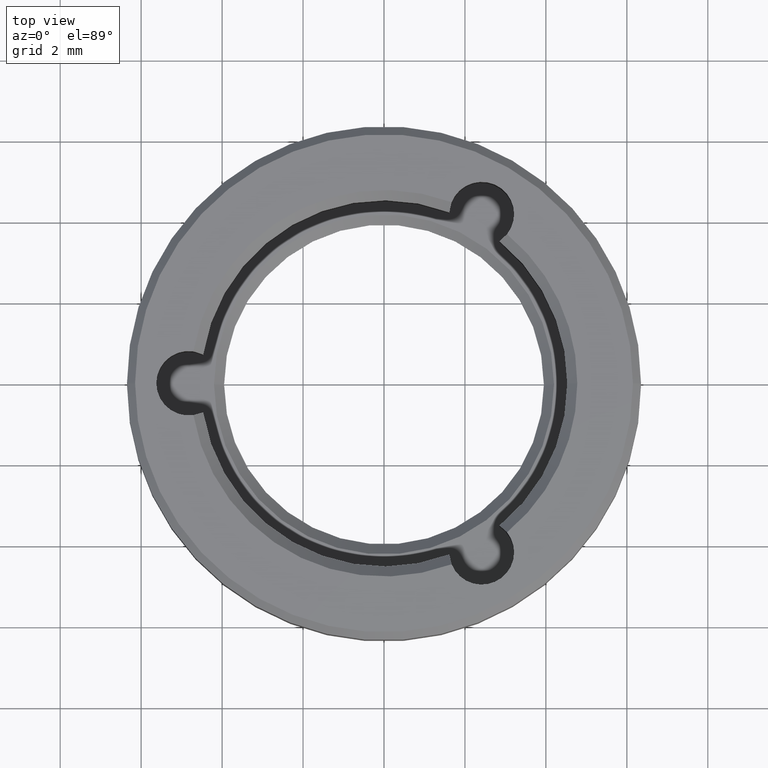
[diagram: clean part render]
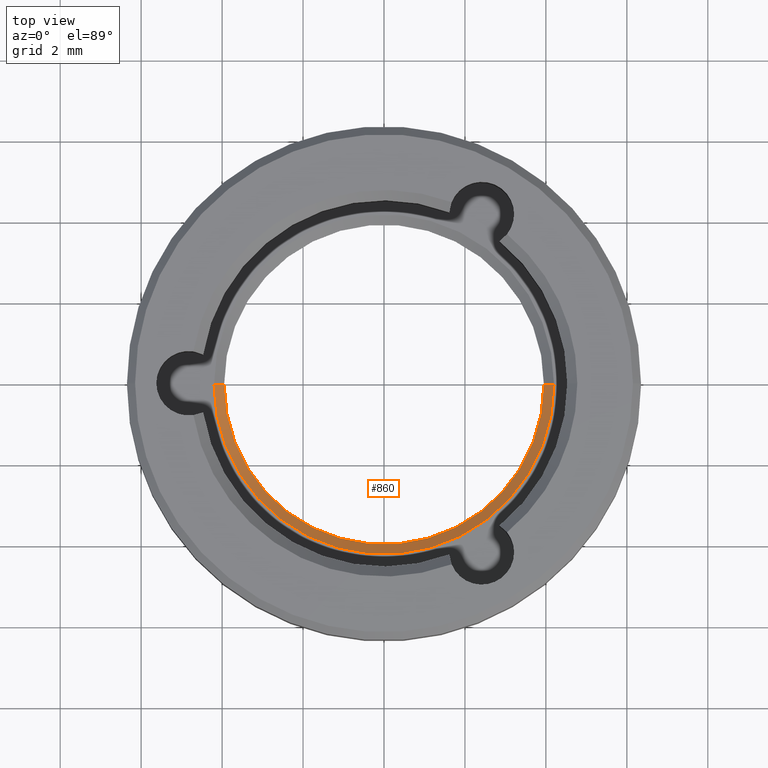
[diagram: same view with one face highlighted and labeled with its STEP entity id]
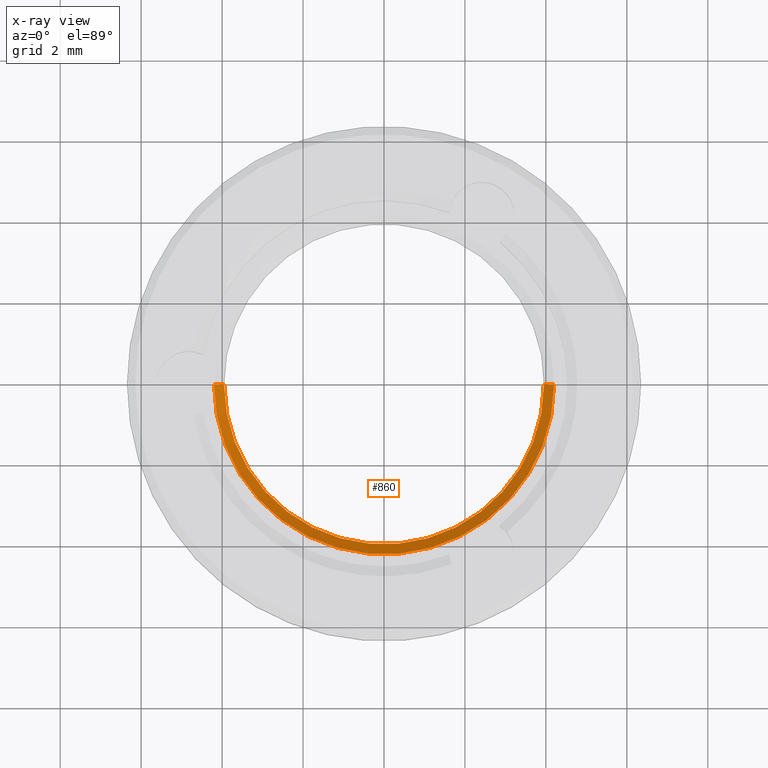
[diagram: x-ray of the same camera — body ghosted, the highlighted face saturated]
A machine part, top view. The second image highlights one B-rep face of the part: STEP entity #860.
The next image is the same camera in x-ray: the body ghosted, the highlighted face saturated — about 0% of this face is hidden behind the body in this view.
In plain terms, the highlighted conical surface has half-angle 45 deg.
Its self-contained STEP definition (entity closure, byte-faithful):
#17 = CARTESIAN_POINT ( 'NONE',  ( 4.199999999999995737, 0.000000000000000000, 0.6000000000000000888 ) ) ;
#21 = EDGE_CURVE ( 'NONE', #678, #889, #741, .T. ) ;
#33 = VERTEX_POINT ( 'NONE', #101 ) ;
#40 = DIRECTION ( 'NONE',  ( 0.000000000000000000, 0.000000000000000000, 1.000000000000000000 ) ) ;
#53 = LINE ( 'NONE', #558, #477 ) ;
#101 = CARTESIAN_POINT ( 'NONE',  ( -3.950000000000000178, 4.837354856632045057E-16, 0.3500000000000067502 ) ) ;
#116 = EDGE_CURVE ( 'NONE', #33, #889, #53, .T. ) ;
#118 = ORIENTED_EDGE ( 'NONE', *, *, #751, .F. ) ;
#153 = CONICAL_SURFACE ( 'NONE', #811, 3.950000000000000178, 0.7853981633974517207 ) ;
#177 = CARTESIAN_POINT ( 'NONE',  ( -4.199999999999995737, 5.143516556418877011E-16, 0.6000000000000000888 ) ) ;
#211 = CIRCLE ( 'NONE', #638, 3.950000000000000178 ) ;
#299 = VERTEX_POINT ( 'NONE', #660 ) ;
#323 = DIRECTION ( 'NONE',  ( 0.7071067811865500152, 0.000000000000000000, 0.7071067811865451302 ) ) ;
#324 = ORIENTED_EDGE ( 'NONE', *, *, #21, .F. ) ;
#329 = DIRECTION ( 'NONE',  ( -0.000000000000000000, -0.000000000000000000, -1.000000000000000000 ) ) ;
#339 = EDGE_CURVE ( 'NONE', #299, #678, #714, .T. ) ;
#351 = AXIS2_PLACEMENT_3D ( 'NONE', #398, #329, #730 ) ;
#398 = CARTESIAN_POINT ( 'NONE',  ( 0.000000000000000000, 0.000000000000000000, 0.6000000000000000888 ) ) ;
#465 = CARTESIAN_POINT ( 'NONE',  ( 3.950000000000000178, 0.000000000000000000, 0.3500000000000067502 ) ) ;
#477 = VECTOR ( 'NONE', #907, 1000.000000000000114 ) ;
#558 = CARTESIAN_POINT ( 'NONE',  ( -3.950000000000000178, 4.837354856632045057E-16, 0.3500000000000067502 ) ) ;
#576 = VECTOR ( 'NONE', #323, 1000.000000000000114 ) ;
#589 = DIRECTION ( 'NONE',  ( 1.000000000000000000, 0.000000000000000000, 0.000000000000000000 ) ) ;
#612 = ORIENTED_EDGE ( 'NONE', *, *, #116, .T. ) ;
#638 = AXIS2_PLACEMENT_3D ( 'NONE', #768, #839, #717 ) ;
#660 = CARTESIAN_POINT ( 'NONE',  ( 3.950000000000000178, 0.000000000000000000, 0.3500000000000067502 ) ) ;
#667 = EDGE_LOOP ( 'NONE', ( #118, #612, #324, #715 ) ) ;
#678 = VERTEX_POINT ( 'NONE', #17 ) ;
#714 = LINE ( 'NONE', #465, #576 ) ;
#715 = ORIENTED_EDGE ( 'NONE', *, *, #339, .F. ) ;
#717 = DIRECTION ( 'NONE',  ( 1.000000000000000000, 0.000000000000000000, 0.000000000000000000 ) ) ;
#730 = DIRECTION ( 'NONE',  ( 1.000000000000000000, 0.000000000000000000, 0.000000000000000000 ) ) ;
#731 = CARTESIAN_POINT ( 'NONE',  ( 0.000000000000000000, 0.000000000000000000, 0.3500000000000067502 ) ) ;
#741 = CIRCLE ( 'NONE', #351, 4.199999999999995737 ) ;
#751 = EDGE_CURVE ( 'NONE', #33, #299, #211, .T. ) ;
#768 = CARTESIAN_POINT ( 'NONE',  ( 0.000000000000000000, 0.000000000000000000, 0.3500000000000067502 ) ) ;
#811 = AXIS2_PLACEMENT_3D ( 'NONE', #731, #40, #589 ) ;
#814 = FACE_OUTER_BOUND ( 'NONE', #667, .T. ) ;
#839 = DIRECTION ( 'NONE',  ( 0.000000000000000000, 0.000000000000000000, 1.000000000000000000 ) ) ;
#860 = ADVANCED_FACE ( 'NONE', ( #814 ), #153, .F. ) ;
#889 = VERTEX_POINT ( 'NONE', #177 ) ;
#907 = DIRECTION ( 'NONE',  ( -0.7071067811865500152, 8.659560562354962440E-17, 0.7071067811865451302 ) ) ;